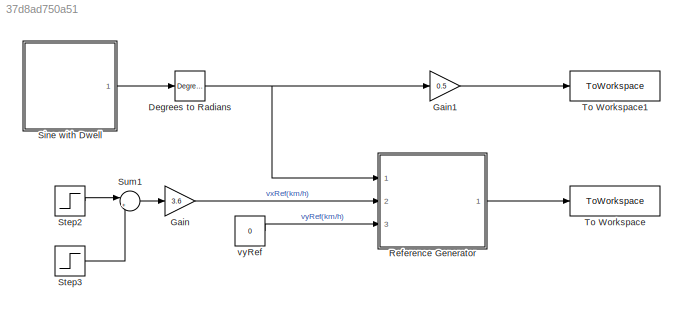
MODEL slx_37d8ad750a51
KIND model
CONFIG AbsTol = auto
CONFIG EnableMultiTasking = off
CONFIG FixedStep = Ts
CONFIG MaxStep = auto
CONFIG MinStep = auto
CONFIG RelTol = 1e-3
CONFIG SampleTimeConstraint = Unconstrained
CONFIG Solver = FixedStepAuto
CONFIG SolverName = FixedStepAuto
CONFIG StartTime = 0.0
CONFIG StopTime = Tsim +Ts*Np
BLOCK [Reference] Degrees to Radians  REF=simulink_extras/Transformations/Degrees to
Radians
  Ports = [1, 1]
  SourceBlock = simulink_extras/Transformations/Degrees to\nRadians
  SourceProductBaseCode = SL
  SourceProductName = Simulink
  SourceType = DegreesToRadians
BLOCK [Gain] Gain
  Gain = 3.6
  OutDataTypeStr = Inherit: Inherit via internal rule
  ParamDataTypeStr = Inherit: Inherit via internal rule
  SaturateOnIntegerOverflow = off
BLOCK [Gain] Gain1
  Gain = 0.5
  OutDataTypeStr = Inherit: Inherit via internal rule
  ParamDataTypeStr = Inherit: Inherit via internal rule
  SaturateOnIntegerOverflow = off
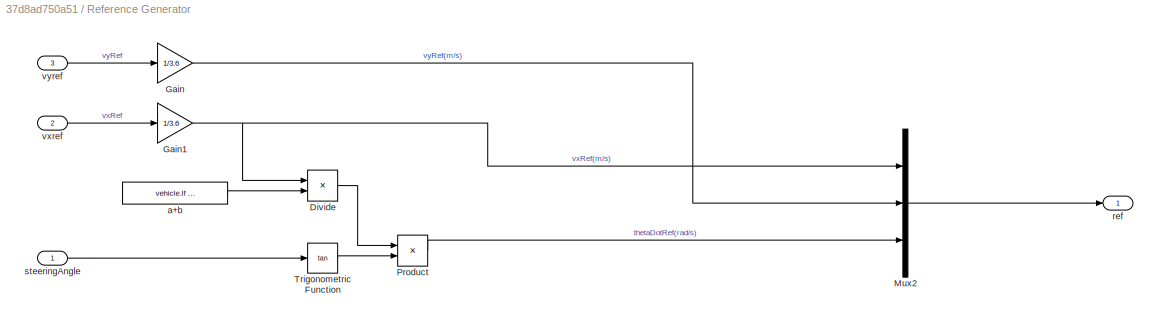
BLOCK [SubSystem] Reference Generator
  Ports = [3, 1]
  RequestExecContextInheritance = off
BLOCK [Product] Reference Generator/Divide
  InputSameDT = off
  Inputs = */
  OutDataTypeStr = Inherit: Inherit via internal rule
  Ports = [2, 1]
  RndMeth = Floor
  SaturateOnIntegerOverflow = off
BLOCK [Gain] Reference Generator/Gain
  Gain = 1/3.6
  OutDataTypeStr = Inherit: Inherit via internal rule
  ParamDataTypeStr = Inherit: Inherit via internal rule
  SaturateOnIntegerOverflow = off
BLOCK [Gain] Reference Generator/Gain1
  Gain = 1/3.6
  OutDataTypeStr = Inherit: Inherit via internal rule
  ParamDataTypeStr = Inherit: Inherit via internal rule
  SaturateOnIntegerOverflow = off
BLOCK [Mux] Reference Generator/Mux2
  DisplayOption = bar
  Inputs = 3
  Ports = [3, 1]
BLOCK [Product] Reference Generator/Product
  InputSameDT = off
  OutDataTypeStr = Inherit: Inherit via internal rule
  Ports = [2, 1]
  RndMeth = Floor
  SaturateOnIntegerOverflow = off
BLOCK [Trigonometry] Reference Generator/Trigonometric Function
  Operator = tan
  OutputSignalType = real
  Ports = [1, 1]
BLOCK [Constant] Reference Generator/a+b
  Value = vehicle.lf + vehicle.lr
BLOCK [Outport] Reference Generator/ref
  IconDisplay = Port number
BLOCK [Inport] Reference Generator/steeringAngle
  IconDisplay = Port number
BLOCK [Inport] Reference Generator/vxref
  IconDisplay = Port number
  Port = 2
BLOCK [Inport] Reference Generator/vyref
  IconDisplay = Port number
  Port = 3
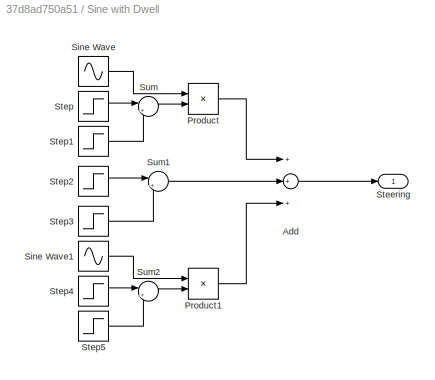
BLOCK [SubSystem] Sine with Dwell
  Ports = [0, 1]
  RequestExecContextInheritance = off
BLOCK [Sum] Sine with Dwell/Add
  InputSameDT = off
  Inputs = +++
  OutDataTypeStr = Inherit: Inherit via internal rule
  Ports = [3, 1]
  SaturateOnIntegerOverflow = off
BLOCK [Product] Sine with Dwell/Product
  InputSameDT = off
  OutDataTypeStr = Inherit: Inherit via internal rule
  Ports = [2, 1]
  RndMeth = Floor
  SaturateOnIntegerOverflow = off
BLOCK [Product] Sine with Dwell/Product1
  InputSameDT = off
  OutDataTypeStr = Inherit: Inherit via internal rule
  Ports = [2, 1]
  RndMeth = Floor
  SaturateOnIntegerOverflow = off
BLOCK [Sin] Sine with Dwell/Sine Wave
  Amplitude = Aref
  Frequency = 2*pi*fref
  Phase = -2*pi*fref*Tref
  Ports = [0, 1]
  SampleTime = 0
BLOCK [Sin] Sine with Dwell/Sine Wave1
  Amplitude = Aref
  Frequency = 2*pi*fref
  Phase = -2*pi*fref*(Tref+Tdref)
  Ports = [0, 1]
  SampleTime = 0
BLOCK [Outport] Sine with Dwell/Steering
  IconDisplay = Port number
BLOCK [Step] Sine with Dwell/Step
  SampleTime = 0
  Time = Tref
BLOCK [Step] Sine with Dwell/Step1
  After = -1
  SampleTime = 0
  Time = Tref+0.75/fref
BLOCK [Step] Sine with Dwell/Step2
  After = -Aref
  SampleTime = 0
  Time = Tref+0.75/fref
BLOCK [Step] Sine with Dwell/Step3
  After = Aref
  SampleTime = 0
  Time = Tref+0.75/fref+Tdref
BLOCK [Step] Sine with Dwell/Step4
  SampleTime = 0
  Time = Tref+0.75/fref+Tdref
BLOCK [Step] Sine with Dwell/Step5
  After = -1
  SampleTime = 0
  Time = Tref+1/fref+Tdref
BLOCK [Sum] Sine with Dwell/Sum
  IconShape = round
  InputSameDT = off
  Inputs = |++
  OutDataTypeStr = Inherit: Inherit via internal rule
  Ports = [2, 1]
  SaturateOnIntegerOverflow = off
BLOCK [Sum] Sine with Dwell/Sum1
  IconShape = round
  InputSameDT = off
  Inputs = |++
  OutDataTypeStr = Inherit: Inherit via internal rule
  Ports = [2, 1]
  SaturateOnIntegerOverflow = off
BLOCK [Sum] Sine with Dwell/Sum2
  IconShape = round
  InputSameDT = off
  Inputs = |++
  OutDataTypeStr = Inherit: Inherit via internal rule
  Ports = [2, 1]
  SaturateOnIntegerOverflow = off
BLOCK [Step] Step2
  After = 80/3.6
  SampleTime = 0
  Time = 0
BLOCK [Step] Step3
  After = 0
  SampleTime = 0
  Time = 5
BLOCK [Sum] Sum1
  IconShape = round
  InputSameDT = off
  Inputs = |+-
  OutDataTypeStr = Inherit: Inherit via internal rule
  Ports = [2, 1]
  SaturateOnIntegerOverflow = off
BLOCK [ToWorkspace] To Workspace
  MaxDataPoints = inf
  Ports = [1]
  SampleTime = Ts
  Save2DSignal = 3-D array (concatenate along third dimension)
  SaveFormat = Structure With Time
  VariableName = reference
BLOCK [ToWorkspace] To Workspace1
  MaxDataPoints = inf
  Ports = [1]
  SampleTime = Ts
  Save2DSignal = 3-D array (concatenate along third dimension)
  SaveFormat = Structure With Time
  VariableName = steering
BLOCK [Constant] vyRef
  Value = 0
NET Degrees to Radians:1 -> Gain1:1, Reference Generator:1
LINE Gain1:1 -> To Workspace1:1
LINE Gain:1 -> Reference Generator:2
LINE Reference Generator/Divide:1 -> Reference Generator/Product:1
NET Reference Generator/Gain1:1 -> Reference Generator/Divide:1, Reference Generator/Mux2:1
LINE Reference Generator/Gain:1 -> Reference Generator/Mux2:2
LINE Reference Generator/Mux2:1 -> Reference Generator/ref:1
LINE Reference Generator/Product:1 -> Reference Generator/Mux2:3
LINE Reference Generator/Trigonometric Function:1 -> Reference Generator/Product:2
LINE Reference Generator/a+b:1 -> Reference Generator/Divide:2
LINE Reference Generator/steeringAngle:1 -> Reference Generator/Trigonometric Function:1
LINE Reference Generator/vxref:1 -> Reference Generator/Gain1:1
LINE Reference Generator/vyref:1 -> Reference Generator/Gain:1
LINE Reference Generator:1 -> To Workspace:1
LINE Sine with Dwell/Add:1 -> Sine with Dwell/Steering:1
LINE Sine with Dwell/Product1:1 -> Sine with Dwell/Add:3
LINE Sine with Dwell/Product:1 -> Sine with Dwell/Add:1
LINE Sine with Dwell/Sine Wave1:1 -> Sine with Dwell/Product1:1
LINE Sine with Dwell/Sine Wave:1 -> Sine with Dwell/Product:1
LINE Sine with Dwell/Step1:1 -> Sine with Dwell/Sum:2
LINE Sine with Dwell/Step2:1 -> Sine with Dwell/Sum1:1
LINE Sine with Dwell/Step3:1 -> Sine with Dwell/Sum1:2
LINE Sine with Dwell/Step4:1 -> Sine with Dwell/Sum2:1
LINE Sine with Dwell/Step5:1 -> Sine with Dwell/Sum2:2
LINE Sine with Dwell/Step:1 -> Sine with Dwell/Sum:1
LINE Sine with Dwell/Sum1:1 -> Sine with Dwell/Add:2
LINE Sine with Dwell/Sum2:1 -> Sine with Dwell/Product1:2
LINE Sine with Dwell/Sum:1 -> Sine with Dwell/Product:2
LINE Sine with Dwell:1 -> Degrees to Radians:1
LINE Step2:1 -> Sum1:1
LINE Step3:1 -> Sum1:2
LINE Sum1:1 -> Gain:1
LINE vyRef:1 -> Reference Generator:3
note: NET lines group one-source signal fan-out (src -> all destinations, sorted); 1:1 wires keep LINE
